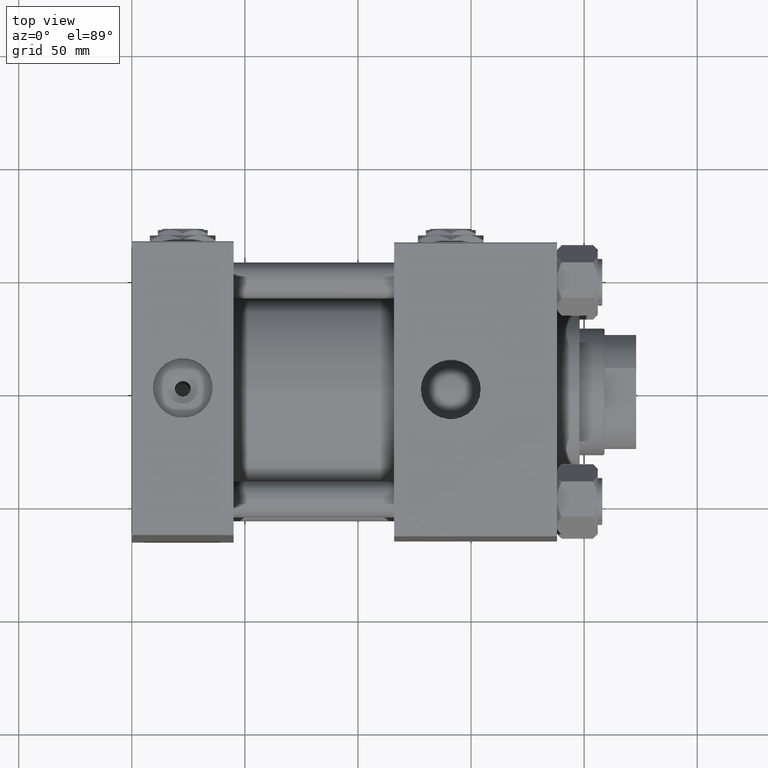
[diagram: clean part render]
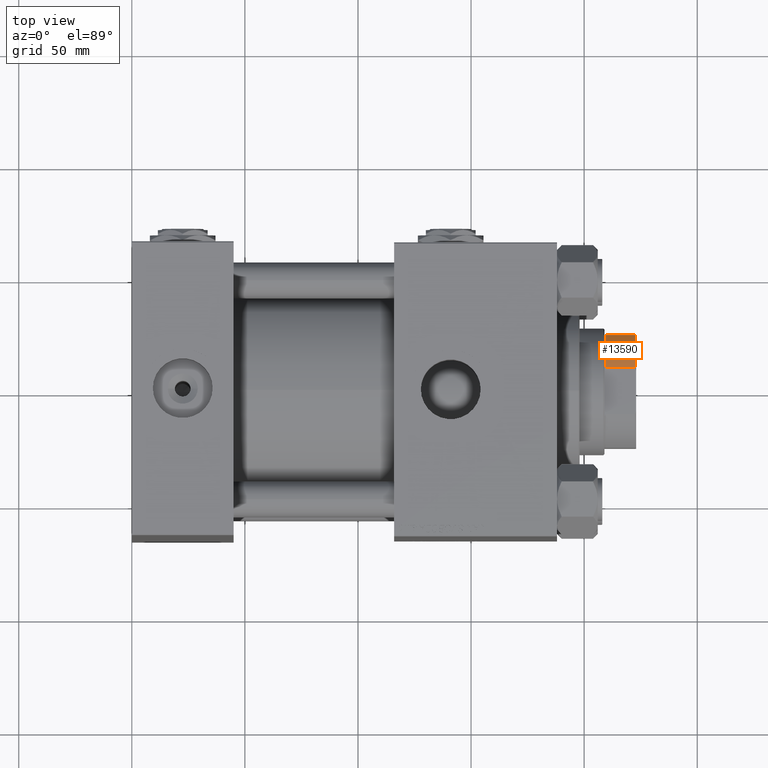
[diagram: same view with one face highlighted and labeled with its STEP entity id]
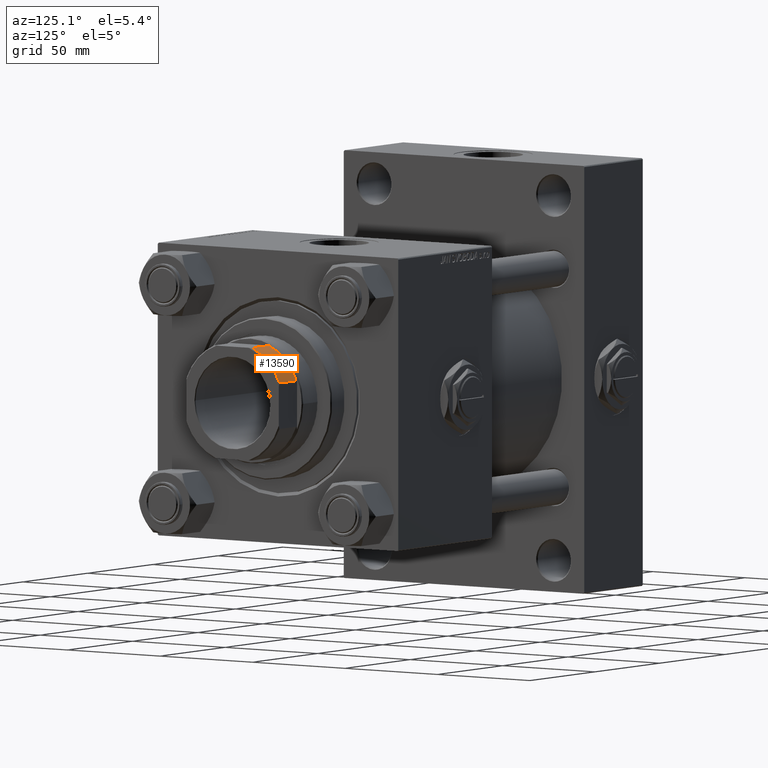
[diagram: same view with one face highlighted and labeled with its STEP entity id]
A machine part, top view. The second image highlights one B-rep face of the part: STEP entity #13590.
A second angle (auxiliary view) of the same face is appended — the face is thin or edge-on in the first view.
In plain terms, the highlighted cylindrical surface (partial cylindrical patch) has radius 27 mm, axis along (1, 0, 0).
Its self-contained STEP definition (entity closure, byte-faithful):
#958 = CARTESIAN_POINT ( 'NONE',  ( -10.19803902718555655, -25.00000000000000000, 164.5000000000000000 ) ) ;
#3254 = CARTESIAN_POINT ( 'NONE',  ( -25.00000000000000000, -10.19803902718555300, -0.001000000000001000089 ) ) ;
#5161 = DIRECTION ( 'NONE',  ( -1.000000000000000000, 0.000000000000000000, 0.000000000000000000 ) ) ;
#5329 = DIRECTION ( 'NONE',  ( -0.000000000000000000, -0.000000000000000000, -1.000000000000000000 ) ) ;
#5592 = DIRECTION ( 'NONE',  ( 1.000000000000000000, 8.881784197001252323E-16, 0.000000000000000000 ) ) ;
#5683 = ORIENTED_EDGE ( 'NONE', *, *, #46474, .T. ) ;
#5709 = EDGE_CURVE ( 'NONE', #35541, #16133, #19101, .T. ) ;
#5989 = FACE_OUTER_BOUND ( 'NONE', #29247, .T. ) ;
#13590 = ADVANCED_FACE ( 'NONE', ( #5989 ), #30696, .T. ) ;
#14370 = CARTESIAN_POINT ( 'NONE',  ( -25.00000000000000000, -10.19803902718555300, 164.5000000000000000 ) ) ;
#14482 = CARTESIAN_POINT ( 'NONE',  ( 0.000000000000000000, 0.000000000000000000, -0.001000000000001000089 ) ) ;
#15987 = EDGE_CURVE ( 'NONE', #50385, #16133, #31966, .T. ) ;
#16133 = VERTEX_POINT ( 'NONE', #16539 ) ;
#16539 = CARTESIAN_POINT ( 'NONE',  ( -25.00000000000000000, -10.19803902718555300, 177.5000000000000568 ) ) ;
#17021 = AXIS2_PLACEMENT_3D ( 'NONE', #29872, #29352, #5161 ) ;
#18227 = AXIS2_PLACEMENT_3D ( 'NONE', #42011, #5329, #5592 ) ;
#18735 = DIRECTION ( 'NONE',  ( -0.000000000000000000, -0.000000000000000000, 1.000000000000000000 ) ) ;
#19101 = CIRCLE ( 'NONE', #18227, 26.99999999999999645 ) ;
#21925 = VERTEX_POINT ( 'NONE', #958 ) ;
#22137 = CIRCLE ( 'NONE', #17021, 26.99999999999999645 ) ;
#22454 = DIRECTION ( 'NONE',  ( 1.000000000000000000, 0.000000000000000000, 0.000000000000000000 ) ) ;
#23007 = ORIENTED_EDGE ( 'NONE', *, *, #34223, .T. ) ;
#23471 = DIRECTION ( 'NONE',  ( -0.000000000000000000, -0.000000000000000000, 1.000000000000000000 ) ) ;
#24939 = ORIENTED_EDGE ( 'NONE', *, *, #15987, .F. ) ;
#25508 = LINE ( 'NONE', #26029, #46328 ) ;
#26029 = CARTESIAN_POINT ( 'NONE',  ( -10.19803902718555655, -25.00000000000000000, -0.001000000000001000089 ) ) ;
#29247 = EDGE_LOOP ( 'NONE', ( #23007, #40874, #24939, #5683 ) ) ;
#29352 = DIRECTION ( 'NONE',  ( -0.000000000000000000, -0.000000000000000000, 1.000000000000000000 ) ) ;
#29872 = CARTESIAN_POINT ( 'NONE',  ( 0.000000000000000000, 0.000000000000000000, 164.5000000000000000 ) ) ;
#30270 = DIRECTION ( 'NONE',  ( -0.000000000000000000, -0.000000000000000000, 1.000000000000000000 ) ) ;
#30696 = CYLINDRICAL_SURFACE ( 'NONE', #38039, 26.99999999999999645 ) ;
#31966 = LINE ( 'NONE', #3254, #36485 ) ;
#34223 = EDGE_CURVE ( 'NONE', #21925, #35541, #25508, .T. ) ;
#35541 = VERTEX_POINT ( 'NONE', #49694 ) ;
#36485 = VECTOR ( 'NONE', #23471, 1000.000000000000000 ) ;
#38039 = AXIS2_PLACEMENT_3D ( 'NONE', #14482, #18735, #22454 ) ;
#40874 = ORIENTED_EDGE ( 'NONE', *, *, #5709, .T. ) ;
#42011 = CARTESIAN_POINT ( 'NONE',  ( 0.000000000000000000, 0.000000000000000000, 177.5000000000000568 ) ) ;
#46328 = VECTOR ( 'NONE', #30270, 1000.000000000000000 ) ;
#46474 = EDGE_CURVE ( 'NONE', #50385, #21925, #22137, .T. ) ;
#49694 = CARTESIAN_POINT ( 'NONE',  ( -10.19803902718555655, -25.00000000000000000, 177.5000000000000568 ) ) ;
#50385 = VERTEX_POINT ( 'NONE', #14370 ) ;